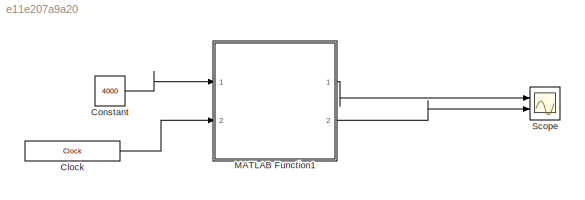
MODEL slx_e11e207a9a20
KIND model
CONFIG AbsTol = auto
CONFIG EnableMultiTasking = off
CONFIG FixedStep = 0.001
CONFIG MaxStep = auto
CONFIG MinStep = auto
CONFIG RelTol = 1e-3
CONFIG SampleTimeConstraint = Unconstrained
CONFIG SolverName = FixedStepAuto
CONFIG StartTime = 0.0
CONFIG StopTime = 25
BLOCK [Clock] Clock
  Decimation = 25
  DisplayTime = on
BLOCK [Constant] Constant
  Value = 4000
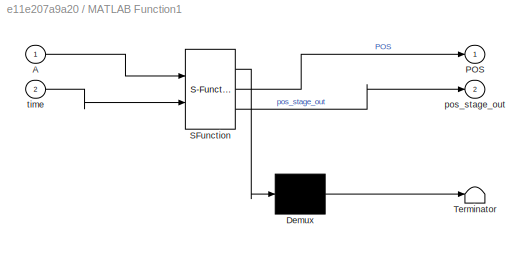
BLOCK [SubSystem] MATLAB Function1
  ErrorFcn = Stateflow.Translate.translate
  PermitHierarchicalResolution = ExplicitOnly
  Ports = [2, 2]
  RequestExecContextInheritance = off
  SFBlockType = MATLAB Function
  TreatAsAtomicUnit = on
BLOCK [Demux] MATLAB Function1/ Demux 
  Outputs = 1
  Ports = [1, 1]
BLOCK [S-Function] MATLAB Function1/ SFunction 
  EnableBusSupport = on
  FunctionName = sf_sfun
  PortCounts = [2 3]
  Ports = [2, 3]
  SFcnIsStateOwnerBlock = off
  SFunctionDeploymentMode = off
  Tag = Stateflow S-Function 1
BLOCK [Terminator] MATLAB Function1/ Terminator 
BLOCK [Inport] MATLAB Function1/A
BLOCK [Outport] MATLAB Function1/POS
BLOCK [Outport] MATLAB Function1/pos_stage_out
  Port = 2
BLOCK [Inport] MATLAB Function1/time
  Port = 2
BLOCK [Scope] Scope
  Floating = off
  NumInputPorts = 2
  Ports = [2]
  ScopeSpecificationString = Simulink.scopes.TimeScopeBlockCfg('CurrentConfiguration', extmgr.ConfigurationSet(extmgr.Configuration('Core','General UI',true),extmgr.Configuration('Core','Source UI',true),extmgr.Configuration('Sources','WiredSimulink',true),extmgr.Configuration('Visuals','Time Domain',true,'SerializedDisplays',{struct('MinYLimReal','49.76071','MaxYLimReal','50.27714','YLabelReal','','MinYLimMag','49.76071','Ma...<+1476ch>
LINE Clock:1 -> MATLAB Function1:2
LINE Constant:1 -> MATLAB Function1:1
LINE MATLAB Function1:1 -> Scope:1
LINE MATLAB Function1:2 -> Scope:2
CHART MATLAB Function1 states=1 transitions=1
  STATE_LABEL 'eML_blk_kernel()'
  STATE_LABEL 'SCRIPT:\nfunction [POS, pos_stage_out]  = pos_setup(A, time)\npersistent pos\nif isempty(pos)\n    pos = 0;\nend\n\npersistent pos_stage\nif isempty(pos_stage)\n    pos_stage = 0; \nend\n    \n    \n    \npos_count = time *1000;\namplitude = A;\nhalf_amplitude = amplitude *0.5;\n\n\n\n    \n    \ntime_0 = 2600;\ntime_1 = time_0 + 1000;\ntime_2 = time_1 + amplitude;\ntime_3 = time_2 + 4000;\ntime_4 = time_3 + amplitude;\ntim...<+1267ch>'
CHART  states=0 transitions=0
